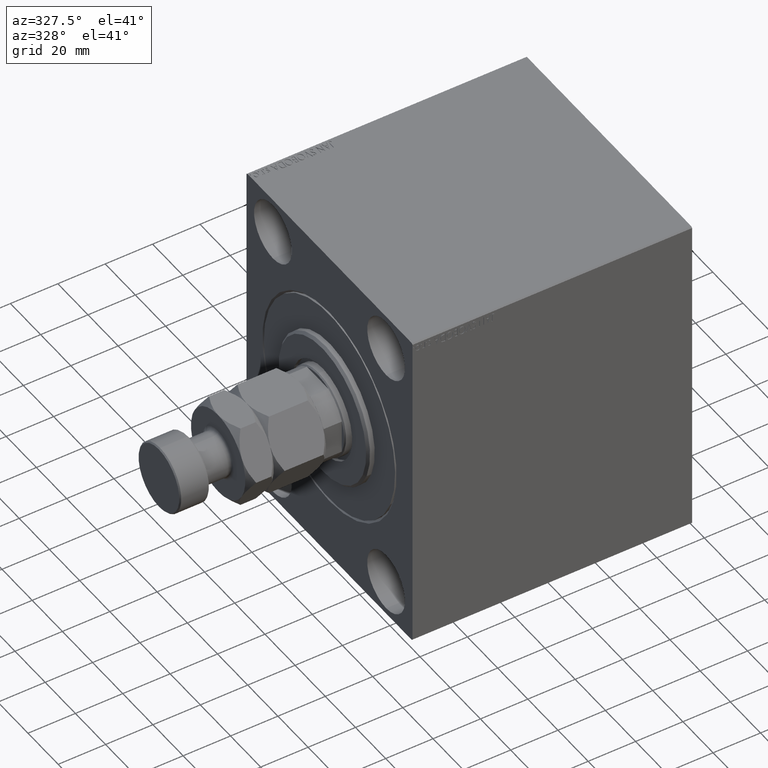
[diagram: clean part render]
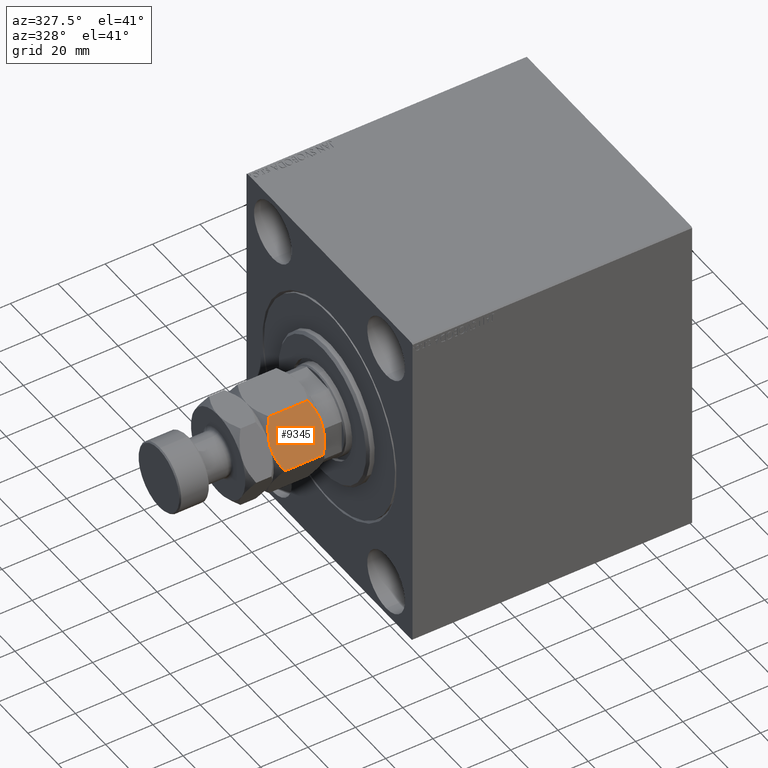
[diagram: same view with one face highlighted and labeled with its STEP entity id]
A machine part, auxiliary view. The second image highlights one B-rep face of the part: STEP entity #9345.
In plain terms, the highlighted planar face has unit normal (0, 0.866, -0.5).
Its self-contained STEP definition (entity closure, byte-faithful):
#1065 = CARTESIAN_POINT ( 'NONE',  ( 18.00000000000000000, -10.39230484541326760, 2.784609690826518769 ) ) ;
#1200 = ORIENTED_EDGE ( 'NONE', *, *, #1896, .F. ) ;
#1251 = CARTESIAN_POINT ( 'NONE',  ( 1.411330396252046038, -19.96977770663490404, 20.03022229336509952 ) ) ;
#1521 = CARTESIAN_POINT ( 'NONE',  ( 10.58425150785354063, -14.67378923359658671, 0.08694689011815642798 ) ) ;
#1826 = CARTESIAN_POINT ( 'NONE',  ( -8.673617379884035472E-16, -20.78460969082652454, 22.00000000000000000 ) ) ;
#1896 = EDGE_CURVE ( 'NONE', #40349, #17229, #6653, .T. ) ;
#1897 = EDGE_CURVE ( 'NONE', #41605, #22948, #30880, .T. ) ;
#2146 = CARTESIAN_POINT ( 'NONE',  ( 8.999999999999992895, -15.58845726811989252, 22.00000000000000000 ) ) ;
#3396 = CARTESIAN_POINT ( 'NONE',  ( -8.673617379884035472E-16, -20.78460969082652454, 22.00000000000000000 ) ) ;
#3845 = EDGE_CURVE ( 'NONE', #4869, #41605, #13644, .T. ) ;
#4133 = CARTESIAN_POINT ( 'NONE',  ( 8.999999999999992895, -15.58845726811989252, 22.00000000000000000 ) ) ;
#4869 = VERTEX_POINT ( 'NONE', #18255 ) ;
#5321 = DIRECTION ( 'NONE',  ( -0.000000000000000000, -0.000000000000000000, -1.000000000000000000 ) ) ;
#5373 = CARTESIAN_POINT ( 'NONE',  ( 8.209538469370121661, -16.04483044561310479, 21.98266714352591222 ) ) ;
#5925 = ORIENTED_EDGE ( 'NONE', *, *, #1897, .F. ) ;
#6653 = B_SPLINE_CURVE_WITH_KNOTS ( 'NONE', 3,
 ( #33468, #1251, #33694, #22640, #16167, #18946, #36930, #5373, #19408, #2146 ),
 .UNSPECIFIED., .F., .F.,
 ( 4, 2, 2, 2, 4 ),
 ( 2.544307986817554504E-07, 0.005386537354063071666, 0.008079678815695268135, 0.009426249546511363334, 0.01077282027732746027 ),
 .UNSPECIFIED. ) ;
#9345 = ADVANCED_FACE ( 'NONE', ( #41415 ), #35165, .F. ) ;
#10333 = EDGE_CURVE ( 'NONE', #40349, #22948, #44191, .T. ) ;
#11215 = ORIENTED_EDGE ( 'NONE', *, *, #3845, .F. ) ;
#12039 = CARTESIAN_POINT ( 'NONE',  ( 1.409696000463984467, -19.97072132548310108, 1.970721325483046238 ) ) ;
#12327 = CARTESIAN_POINT ( 'NONE',  ( 8.999999999999992895, -15.58845726811989252, 22.00000000000000000 ) ) ;
#12493 = CARTESIAN_POINT ( 'NONE',  ( 7.434539168300455358, -16.49227650070744033, 3.567702773835112239E-15 ) ) ;
#12755 = CARTESIAN_POINT ( 'NONE',  ( -5.711424626294094742E-16, -20.78460969082652454, 2.784609690826514772 ) ) ;
#13644 = B_SPLINE_CURVE_WITH_KNOTS ( 'NONE', 3,
 ( #1065, #33062, #36976, #33516, #36743, #23143, #1521, #26372, #22459, #19455 ),
 .UNSPECIFIED., .F., .F.,
 ( 4, 2, 2, 2, 4 ),
 ( 2.544307986804616605E-07, 0.005386537354063076002, 0.008079678815695275074, 0.009426249546511373742, 0.01077282027732747241 ),
 .UNSPECIFIED. ) ;
#14148 = VECTOR ( 'NONE', #37277, 1000.000000000000000 ) ;
#15496 = CARTESIAN_POINT ( 'NONE',  ( 5.895697476400517445, -17.38072716576608912, 0.2763959071215842944 ) ) ;
#16167 = CARTESIAN_POINT ( 'NONE',  ( 5.858009779716796039, -17.40248616759157230, 21.65943689774472602 ) ) ;
#17229 = VERTEX_POINT ( 'NONE', #12327 ) ;
#17417 = DIRECTION ( 'NONE',  ( -0.4999999999999997224, 0.8660254037844388186, 0.000000000000000000 ) ) ;
#18255 = CARTESIAN_POINT ( 'NONE',  ( 18.00000000000000000, -10.39230484541326760, 2.784609690826518769 ) ) ;
#18615 = CARTESIAN_POINT ( 'NONE',  ( 18.00000000000000000, -10.39230484541326760, 19.21539030917347901 ) ) ;
#18946 = CARTESIAN_POINT ( 'NONE',  ( 7.023280245922040699, -16.72971695024925154, 21.86127740090141458 ) ) ;
#19408 = CARTESIAN_POINT ( 'NONE',  ( 8.605874323383760682, -15.81600583360882162, 21.99999999999999289 ) ) ;
#19455 = CARTESIAN_POINT ( 'NONE',  ( 8.999999999999994671, -15.58845726811989607, 0.000000000000000000 ) ) ;
#21761 = VERTEX_POINT ( 'NONE', #38762 ) ;
#22411 = CARTESIAN_POINT ( 'NONE',  ( -5.711424626294094742E-16, -20.78460969082652454, 2.784609690826514772 ) ) ;
#22459 = CARTESIAN_POINT ( 'NONE',  ( 9.394125676616228660, -15.36090870263097585, 3.470293984900869278E-15 ) ) ;
#22640 = CARTESIAN_POINT ( 'NONE',  ( 5.097327296964719423, -17.84166640377631552, 21.46291444417098049 ) ) ;
#22948 = VERTEX_POINT ( 'NONE', #12755 ) ;
#23143 = CARTESIAN_POINT ( 'NONE',  ( 10.97671975407794953, -14.44719758599054593, 0.1387225990985770097 ) ) ;
#23355 = CARTESIAN_POINT ( 'NONE',  ( 8.999999999999994671, -15.58845726811989607, 0.000000000000000000 ) ) ;
#25989 = CARTESIAN_POINT ( 'NONE',  ( 15.13928418966203004, -12.04393988858690356, 20.72742529849574922 ) ) ;
#26372 = CARTESIAN_POINT ( 'NONE',  ( 9.790461530629871234, -15.13208409062669801, 0.01733285647409176997 ) ) ;
#26502 = CARTESIAN_POINT ( 'NONE',  ( 18.00000000000000000, -10.39230484541326760, 22.00000000000000000 ) ) ;
#28595 = ORIENTED_EDGE ( 'NONE', *, *, #42697, .F. ) ;
#28869 = AXIS2_PLACEMENT_3D ( 'NONE', #3396, #17417, #31715 ) ;
#29446 = CARTESIAN_POINT ( 'NONE',  ( 10.56546083169953043, -14.68463803553235358, 21.99999999999998934 ) ) ;
#30239 = CARTESIAN_POINT ( 'NONE',  ( 8.999999999999994671, -15.58845726811989607, 0.000000000000000000 ) ) ;
#30398 = EDGE_CURVE ( 'NONE', #17229, #21761, #43076, .T. ) ;
#30880 = B_SPLINE_CURVE_WITH_KNOTS ( 'NONE', 3,
 ( #30239, #12493, #15496, #44290, #12039, #22411 ),
 .UNSPECIFIED., .F., .F.,
 ( 4, 2, 4 ),
 ( 0.01077282027732747241, 0.01612137750481873466, 0.02146993473230999691 ),
 .UNSPECIFIED. ) ;
#31715 = DIRECTION ( 'NONE',  ( -0.8660254037844388186, -0.4999999999999997224, 0.000000000000000000 ) ) ;
#32681 = CARTESIAN_POINT ( 'NONE',  ( 16.59030399953601531, -11.20619321075668928, 20.02927867451694510 ) ) ;
#32898 = EDGE_LOOP ( 'NONE', ( #11215, #28595, #44810, #1200, #43594, #5925 ) ) ;
#33062 = CARTESIAN_POINT ( 'NONE',  ( 16.58866960374795596, -11.20713682960488988, 1.969777706634904035 ) ) ;
#33468 = CARTESIAN_POINT ( 'NONE',  ( -6.333703707815436362E-16, -20.78460969082652454, 19.21539030917348256 ) ) ;
#33516 = CARTESIAN_POINT ( 'NONE',  ( 12.90267270303526814, -13.33524813246347662, 0.5370855558290119625 ) ) ;
#33694 = CARTESIAN_POINT ( 'NONE',  ( 2.854601888853810721, -19.13650452186756823, 20.72261692211012374 ) ) ;
#35165 = PLANE ( 'NONE',  #28869 ) ;
#36743 = CARTESIAN_POINT ( 'NONE',  ( 12.14199022028319597, -13.77442836864822340, 0.3405631022552691456 ) ) ;
#36930 = CARTESIAN_POINT ( 'NONE',  ( 7.415748492146448712, -16.50312530264321254, 21.91305310988184374 ) ) ;
#36976 = CARTESIAN_POINT ( 'NONE',  ( 15.14539811114618928, -12.04041001437223102, 1.277383077889873153 ) ) ;
#37277 = DIRECTION ( 'NONE',  ( -0.000000000000000000, -0.000000000000000000, -1.000000000000000000 ) ) ;
#38359 = CARTESIAN_POINT ( 'NONE',  ( -6.333703707815436362E-16, -20.78460969082652454, 19.21539030917348256 ) ) ;
#38762 = CARTESIAN_POINT ( 'NONE',  ( 18.00000000000000000, -10.39230484541326760, 19.21539030917347901 ) ) ;
#40058 = CARTESIAN_POINT ( 'NONE',  ( 12.10430252359947545, -13.79618737047370658, 21.72360409287842131 ) ) ;
#40335 = LINE ( 'NONE', #26502, #41932 ) ;
#40349 = VERTEX_POINT ( 'NONE', #38359 ) ;
#41415 = FACE_OUTER_BOUND ( 'NONE', #32898, .T. ) ;
#41605 = VERTEX_POINT ( 'NONE', #23355 ) ;
#41932 = VECTOR ( 'NONE', #5321, 1000.000000000000000 ) ;
#42697 = EDGE_CURVE ( 'NONE', #21761, #4869, #40335, .T. ) ;
#43076 = B_SPLINE_CURVE_WITH_KNOTS ( 'NONE', 3,
 ( #4133, #29446, #40058, #25989, #32681, #18615 ),
 .UNSPECIFIED., .F., .F.,
 ( 4, 2, 4 ),
 ( 0.01077282027732746027, 0.01612137750481873119, 0.02146993473231000038 ),
 .UNSPECIFIED. ) ;
#43594 = ORIENTED_EDGE ( 'NONE', *, *, #10333, .T. ) ;
#44191 = LINE ( 'NONE', #1826, #14148 ) ;
#44290 = CARTESIAN_POINT ( 'NONE',  ( 2.860715810337961074, -19.13297464765287614, 1.272574701504241457 ) ) ;
#44810 = ORIENTED_EDGE ( 'NONE', *, *, #30398, .F. ) ;